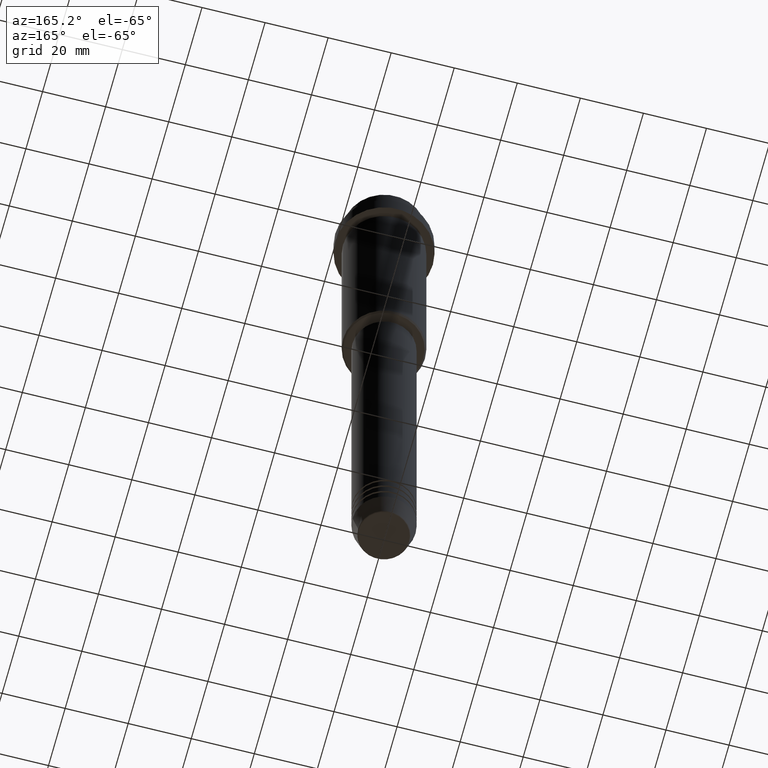
[diagram: clean part render]
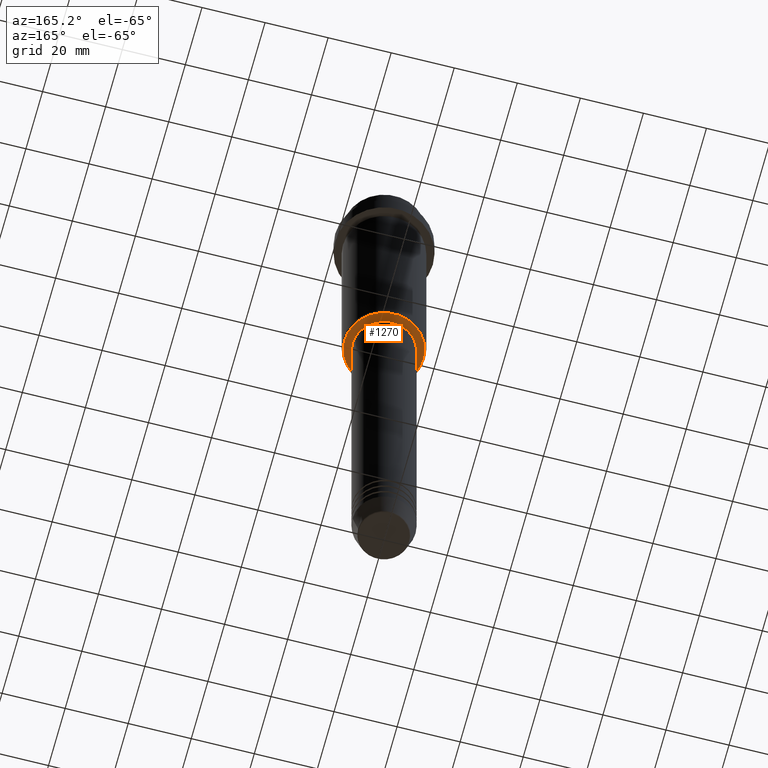
[diagram: same view with one face highlighted and labeled with its STEP entity id]
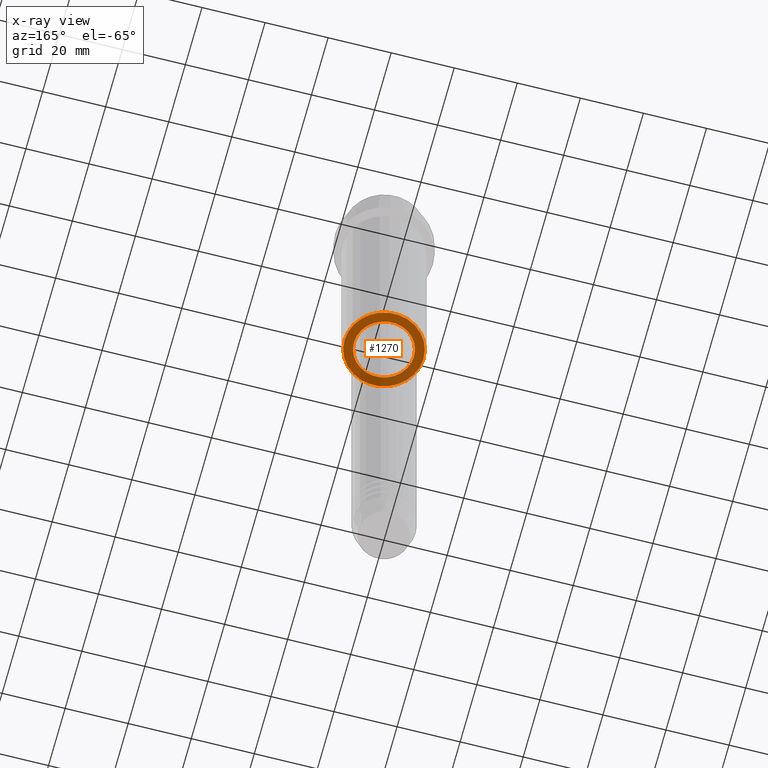
[diagram: x-ray of the same camera — body ghosted, the highlighted face saturated]
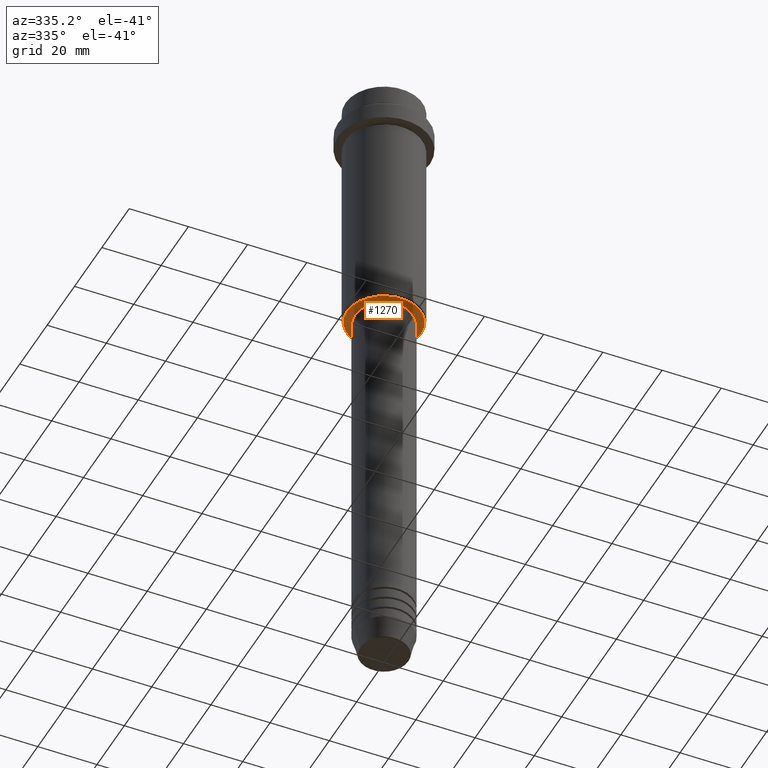
[diagram: same view with one face highlighted and labeled with its STEP entity id]
A machine part, auxiliary view. The second image highlights one B-rep face of the part: STEP entity #1270.
The next image is the same camera in x-ray: the body ghosted, the highlighted face saturated — about 32% of this face is hidden behind the body in this view.
A second angle (auxiliary view) of the same face is appended — the face is thin or edge-on in the first view.
In plain terms, the highlighted planar face has unit normal (0, 0, -1).
Its self-contained STEP definition (entity closure, byte-faithful):
#8 = CARTESIAN_POINT ( 'NONE',  ( 0.000000000000000000, 0.000000000000000000, -85.00000000000001421 ) ) ;
#22 = DIRECTION ( 'NONE',  ( -0.000000000000000000, -0.000000000000000000, 1.000000000000000000 ) ) ;
#31 = ORIENTED_EDGE ( 'NONE', *, *, #943, .T. ) ;
#54 = ORIENTED_EDGE ( 'NONE', *, *, #1215, .T. ) ;
#55 = DIRECTION ( 'NONE',  ( 0.000000000000000000, 0.000000000000000000, -1.000000000000000000 ) ) ;
#93 = AXIS2_PLACEMENT_3D ( 'NONE', #545, #652, #211 ) ;
#94 = AXIS2_PLACEMENT_3D ( 'NONE', #1001, #22, #498 ) ;
#98 = FACE_OUTER_BOUND ( 'NONE', #548, .T. ) ;
#104 = CARTESIAN_POINT ( 'NONE',  ( 0.000000000000000000, 13.00000000000000000, -85.00000000000001421 ) ) ;
#167 = DIRECTION ( 'NONE',  ( -0.000000000000000000, -0.000000000000000000, 1.000000000000000000 ) ) ;
#185 = CIRCLE ( 'NONE', #93, 12.50000000000001066 ) ;
#194 = VERTEX_POINT ( 'NONE', #1334 ) ;
#202 = DIRECTION ( 'NONE',  ( 0.000000000000000000, 0.000000000000000000, -1.000000000000000000 ) ) ;
#205 = CARTESIAN_POINT ( 'NONE',  ( 12.50000000000001066, 0.000000000000000000, -85.00000000000001421 ) ) ;
#211 = DIRECTION ( 'NONE',  ( -1.000000000000000000, 0.000000000000000000, 0.000000000000000000 ) ) ;
#269 = DIRECTION ( 'NONE',  ( -1.000000000000000000, 0.000000000000000000, 0.000000000000000000 ) ) ;
#332 = CARTESIAN_POINT ( 'NONE',  ( -9.499999999999996447, 1.163414459189985091E-15, -85.00000000000001421 ) ) ;
#393 = CIRCLE ( 'NONE', #658, 9.499999999999996447 ) ;
#446 = PLANE ( 'NONE',  #867 ) ;
#472 = VERTEX_POINT ( 'NONE', #205 ) ;
#498 = DIRECTION ( 'NONE',  ( 1.000000000000000000, 0.000000000000000000, 0.000000000000000000 ) ) ;
#545 = CARTESIAN_POINT ( 'NONE',  ( 0.000000000000000000, 0.000000000000000000, -85.00000000000001421 ) ) ;
#548 = EDGE_LOOP ( 'NONE', ( #31, #54 ) ) ;
#560 = DIRECTION ( 'NONE',  ( -1.000000000000000000, 0.000000000000000000, -0.000000000000000000 ) ) ;
#652 = DIRECTION ( 'NONE',  ( 0.000000000000000000, 0.000000000000000000, -1.000000000000000000 ) ) ;
#653 = ORIENTED_EDGE ( 'NONE', *, *, #667, .T. ) ;
#658 = AXIS2_PLACEMENT_3D ( 'NONE', #8, #167, #1095 ) ;
#667 = EDGE_CURVE ( 'NONE', #1380, #888, #393, .T. ) ;
#722 = CARTESIAN_POINT ( 'NONE',  ( 0.000000000000000000, 0.000000000000000000, -85.00000000000001421 ) ) ;
#754 = CIRCLE ( 'NONE', #94, 9.499999999999996447 ) ;
#867 = AXIS2_PLACEMENT_3D ( 'NONE', #104, #202, #560 ) ;
#888 = VERTEX_POINT ( 'NONE', #332 ) ;
#922 = EDGE_LOOP ( 'NONE', ( #653, #968 ) ) ;
#943 = EDGE_CURVE ( 'NONE', #472, #194, #185, .T. ) ;
#968 = ORIENTED_EDGE ( 'NONE', *, *, #1111, .T. ) ;
#1001 = CARTESIAN_POINT ( 'NONE',  ( 0.000000000000000000, 0.000000000000000000, -85.00000000000001421 ) ) ;
#1084 = FACE_BOUND ( 'NONE', #922, .T. ) ;
#1095 = DIRECTION ( 'NONE',  ( 1.000000000000000000, 0.000000000000000000, 0.000000000000000000 ) ) ;
#1111 = EDGE_CURVE ( 'NONE', #888, #1380, #754, .T. ) ;
#1209 = AXIS2_PLACEMENT_3D ( 'NONE', #722, #55, #269 ) ;
#1215 = EDGE_CURVE ( 'NONE', #194, #472, #1308, .T. ) ;
#1270 = ADVANCED_FACE ( 'NONE', ( #98, #1084 ), #446, .T. ) ;
#1308 = CIRCLE ( 'NONE', #1209, 12.50000000000001066 ) ;
#1334 = CARTESIAN_POINT ( 'NONE',  ( -12.50000000000001066, 1.561424668912876097E-15, -85.00000000000001421 ) ) ;
#1335 = CARTESIAN_POINT ( 'NONE',  ( 9.499999999999996447, 0.000000000000000000, -85.00000000000001421 ) ) ;
#1380 = VERTEX_POINT ( 'NONE', #1335 ) ;